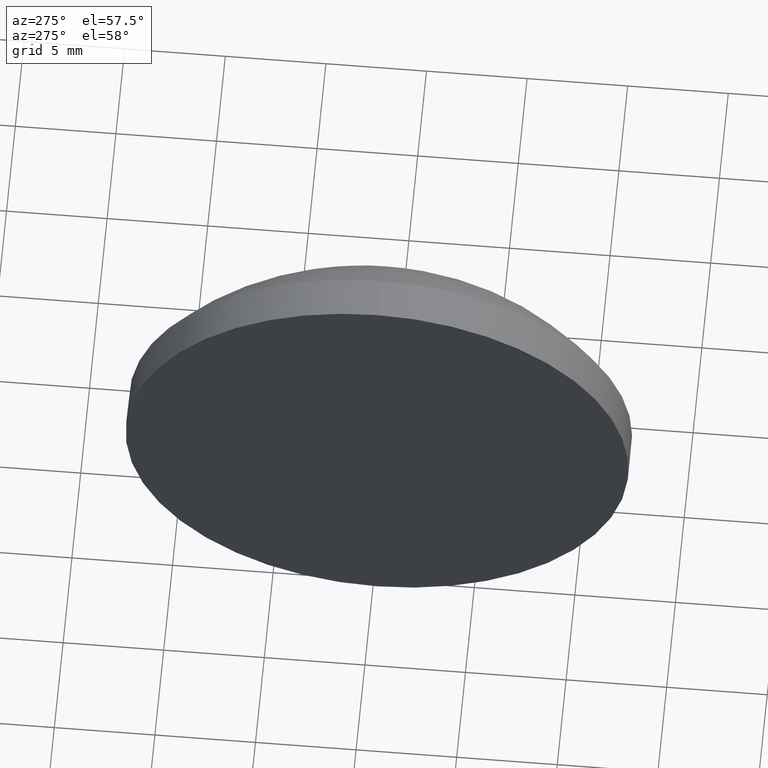
[diagram: clean part render]
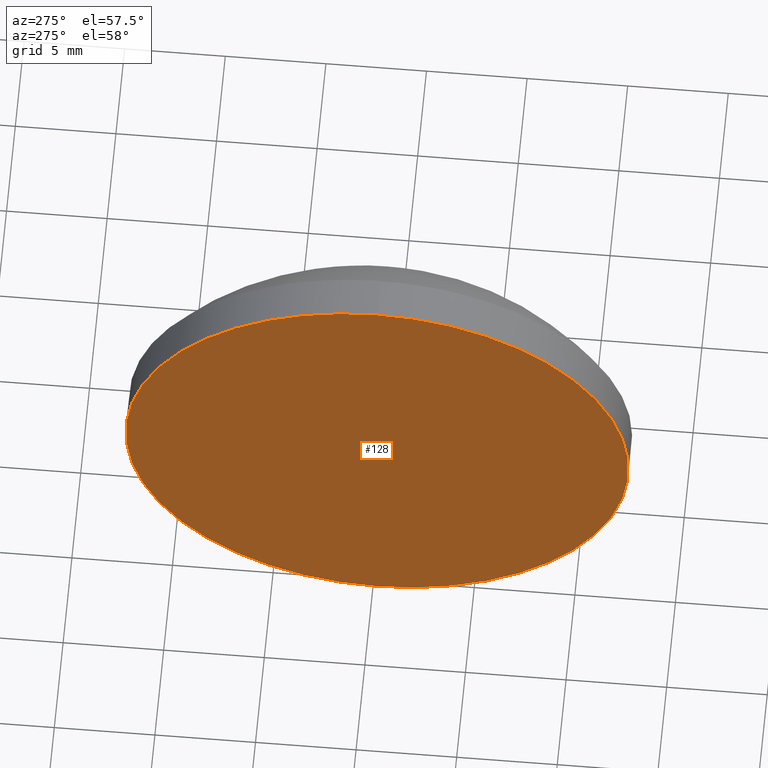
[diagram: same view with one face highlighted and labeled with its STEP entity id]
A machine part, auxiliary view. The second image highlights one B-rep face of the part: STEP entity #128.
In plain terms, the highlighted planar face has unit normal (1, 0, 0).
Its self-contained STEP definition (entity closure, byte-faithful):
#3 = CIRCLE ( 'NONE', #97, 12.50000000000000000 ) ;
#6 = CARTESIAN_POINT ( 'NONE',  ( 409.3082929316683500, -5.229201432755417000, 0.0000000000000000000 ) ) ;
#13 = EDGE_CURVE ( 'NONE', #107, #66, #3, .T. ) ;
#15 = ORIENTED_EDGE ( 'NONE', *, *, #13, .T. ) ;
#19 = CARTESIAN_POINT ( 'NONE',  ( 409.3082929316683500, -5.229201432755417000, 0.0000000000000000000 ) ) ;
#23 = EDGE_CURVE ( 'NONE', #66, #107, #48, .T. ) ;
#34 = DIRECTION ( 'NONE',  ( 0.0000000000000000000, 0.0000000000000000000, 1.000000000000000000 ) ) ;
#48 = CIRCLE ( 'NONE', #99, 12.50000000000000000 ) ;
#52 = AXIS2_PLACEMENT_3D ( 'NONE', #6, #181, #167 ) ;
#65 = CARTESIAN_POINT ( 'NONE',  ( 409.3082929316683500, -5.229201432755415300, -12.50000000000000000 ) ) ;
#66 = VERTEX_POINT ( 'NONE', #101 ) ;
#77 = DIRECTION ( 'NONE',  ( 0.0000000000000000000, 0.0000000000000000000, 1.000000000000000000 ) ) ;
#86 = DIRECTION ( 'NONE',  ( -1.000000000000000000, -0.0000000000000000000, -0.0000000000000000000 ) ) ;
#97 = AXIS2_PLACEMENT_3D ( 'NONE', #164, #177, #77 ) ;
#99 = AXIS2_PLACEMENT_3D ( 'NONE', #19, #86, #34 ) ;
#101 = CARTESIAN_POINT ( 'NONE',  ( 409.3082929316683500, -5.229201432755417000, 12.50000000000000000 ) ) ;
#107 = VERTEX_POINT ( 'NONE', #65 ) ;
#108 = PLANE ( 'NONE',  #52 ) ;
#113 = FACE_OUTER_BOUND ( 'NONE', #185, .T. ) ;
#128 = ADVANCED_FACE ( 'NONE', ( #113 ), #108, .F. ) ;
#144 = ORIENTED_EDGE ( 'NONE', *, *, #23, .T. ) ;
#164 = CARTESIAN_POINT ( 'NONE',  ( 409.3082929316683500, -5.229201432755417000, 0.0000000000000000000 ) ) ;
#167 = DIRECTION ( 'NONE',  ( 0.0000000000000000000, 0.0000000000000000000, -1.000000000000000000 ) ) ;
#177 = DIRECTION ( 'NONE',  ( -1.000000000000000000, -0.0000000000000000000, -0.0000000000000000000 ) ) ;
#181 = DIRECTION ( 'NONE',  ( 1.000000000000000000, 0.0000000000000000000, 0.0000000000000000000 ) ) ;
#185 = EDGE_LOOP ( 'NONE', ( #144, #15 ) ) ;